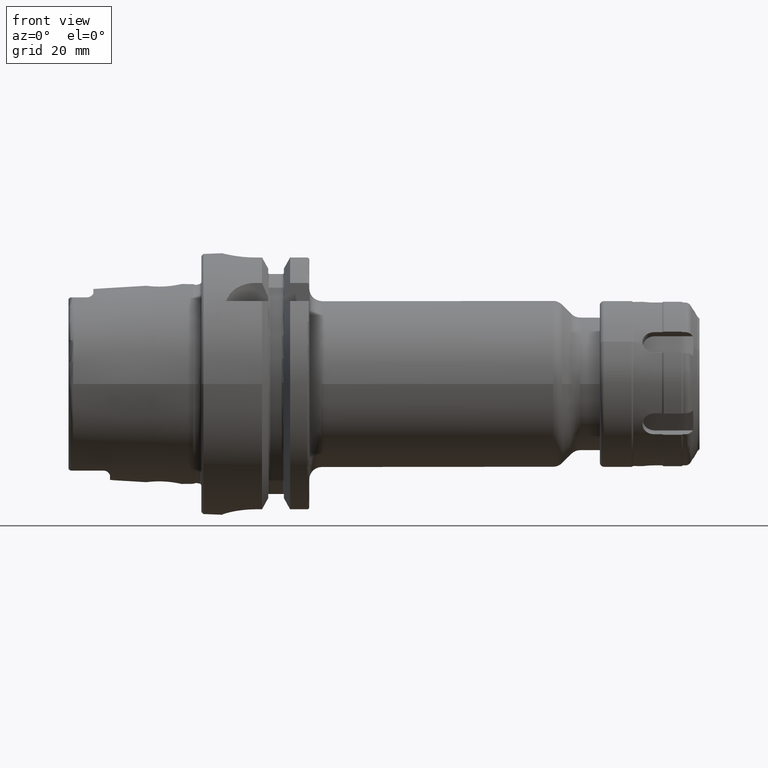
[diagram: clean part render]
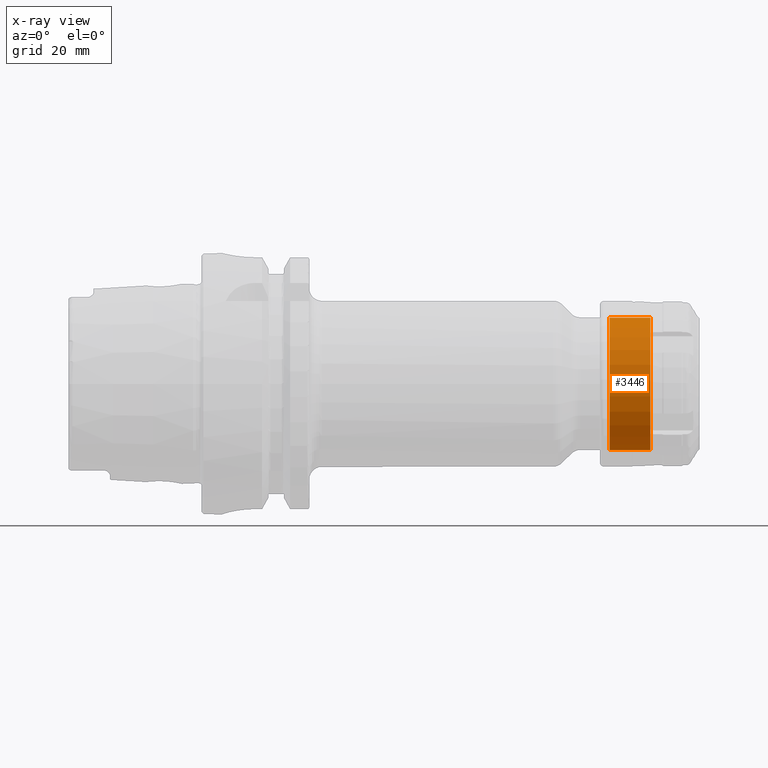
[diagram: x-ray — body ghosted, one internal face saturated and labeled with its STEP entity id]
A machine part, front view, then the same camera in x-ray: the body is ghosted and one INTERNAL B-rep face — a face not visible from any outside direction — is saturated and labeled: STEP entity #3446.
In plain terms, the highlighted cylindrical surface (bore or boss wall) has radius 16 mm, axis along (-1, -0, -0).
Its self-contained STEP definition (entity closure, byte-faithful):
#308=CYLINDRICAL_SURFACE('',#3913,16.);
#485=FACE_OUTER_BOUND('',#691,.T.);
#691=EDGE_LOOP('',(#3130,#3131,#3132,#3133,#3134));
#903=LINE('',#6981,#1109);
#1109=VECTOR('',#4906,16.);
#1310=CIRCLE('',#3911,16.);
#1311=CIRCLE('',#3912,16.);
#1312=CIRCLE('',#3914,16.);
#1650=VERTEX_POINT('',#6974);
#1651=VERTEX_POINT('',#6975);
#1652=VERTEX_POINT('',#6980);
#2158=EDGE_CURVE('',#1650,#1651,#1310,.T.);
#2159=EDGE_CURVE('',#1651,#1650,#1311,.T.);
#2161=EDGE_CURVE('',#1651,#1652,#903,.T.);
#2162=EDGE_CURVE('',#1652,#1652,#1312,.T.);
#3130=ORIENTED_EDGE('',*,*,#2158,.F.);
#3131=ORIENTED_EDGE('',*,*,#2159,.F.);
#3132=ORIENTED_EDGE('',*,*,#2161,.T.);
#3133=ORIENTED_EDGE('',*,*,#2162,.T.);
#3134=ORIENTED_EDGE('',*,*,#2161,.F.);
#3446=ADVANCED_FACE('',(#485),#308,.F.);
#3911=AXIS2_PLACEMENT_3D('',#6976,#4899,#4900);
#3912=AXIS2_PLACEMENT_3D('',#6977,#4901,#4902);
#3913=AXIS2_PLACEMENT_3D('',#6979,#4904,#4905);
#3914=AXIS2_PLACEMENT_3D('',#6982,#4907,#4908);
#4899=DIRECTION('center_axis',(1.,0.,0.));
#4900=DIRECTION('ref_axis',(0.,1.,0.));
#4901=DIRECTION('center_axis',(1.,0.,0.));
#4902=DIRECTION('ref_axis',(0.,1.,0.));
#4904=DIRECTION('center_axis',(1.,0.,0.));
#4905=DIRECTION('ref_axis',(0.,-1.,0.));
#4906=DIRECTION('',(1.,0.,0.));
#4907=DIRECTION('center_axis',(1.,0.,0.));
#4908=DIRECTION('ref_axis',(0.,1.,0.));
#6974=CARTESIAN_POINT('',(11.84641016151,-16.,0.));
#6975=CARTESIAN_POINT('',(11.84641016151,16.,1.95943487863577E-15));
#6976=CARTESIAN_POINT('Origin',(11.84641016151,0.,0.));
#6977=CARTESIAN_POINT('Origin',(11.84641016151,0.,0.));
#6979=CARTESIAN_POINT('Origin',(-1.2,0.,0.));
#6980=CARTESIAN_POINT('',(21.65358983849,16.,1.95943487863577E-15));
#6981=CARTESIAN_POINT('',(-1.2,16.,1.95943487863577E-15));
#6982=CARTESIAN_POINT('Origin',(21.65358983849,0.,0.));